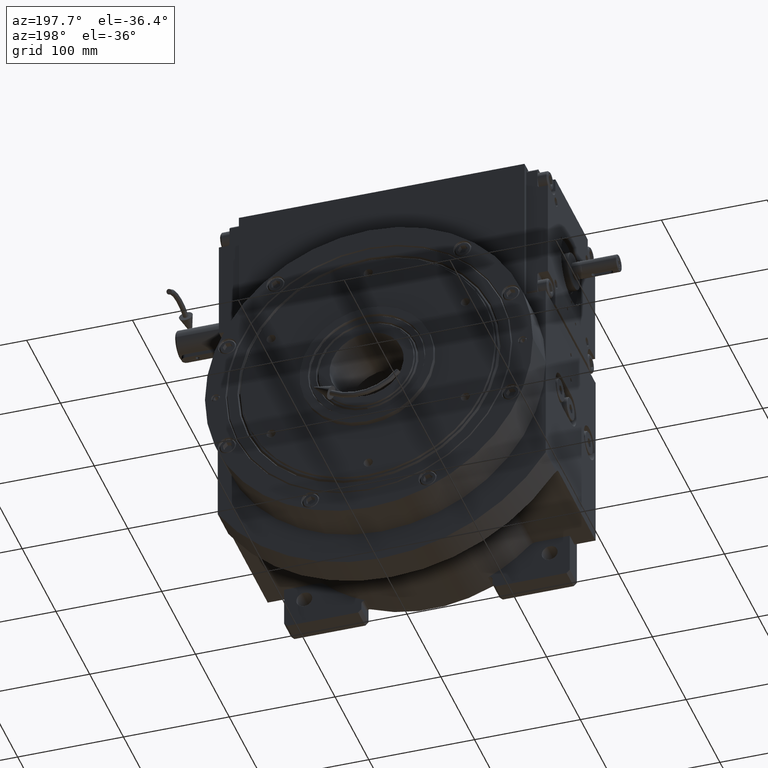
[diagram: clean part render]
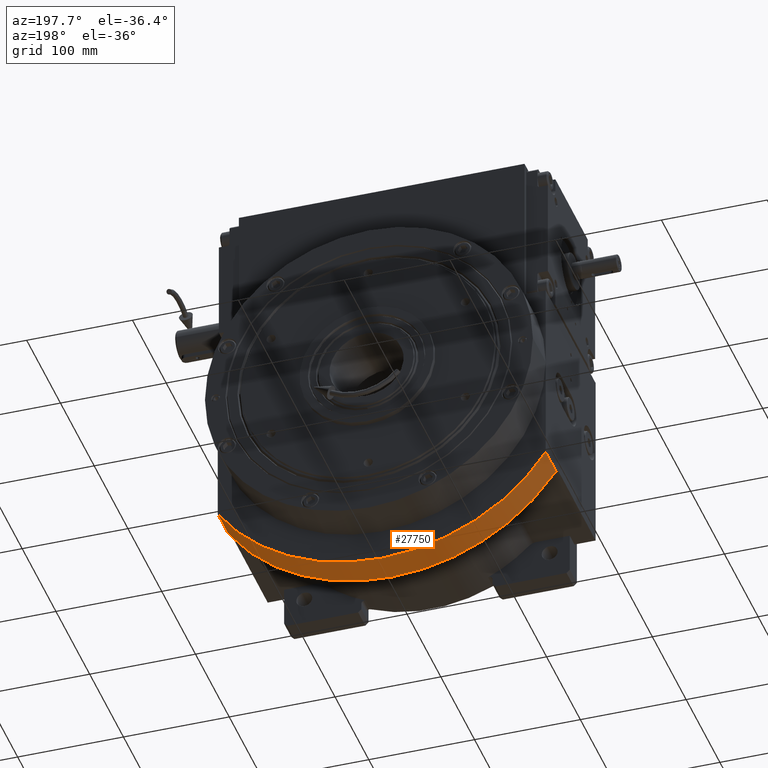
[diagram: same view with one face highlighted and labeled with its STEP entity id]
A machine part, auxiliary view. The second image highlights one B-rep face of the part: STEP entity #27750.
In plain terms, the highlighted cylindrical surface (partial cylindrical patch) has radius 185 mm, axis along (0, -1, 0).
Its self-contained STEP definition (entity closure, byte-faithful):
#423 = AXIS2_PLACEMENT_3D ( 'NONE', #9315, #56445, #25122 ) ;
#2122 = VERTEX_POINT ( 'NONE', #19572 ) ;
#3118 = CARTESIAN_POINT ( 'NONE',  ( -151.6212386178135034, 45.00000000000000000, -106.0000000000000000 ) ) ;
#3895 = CARTESIAN_POINT ( 'NONE',  ( 155.0000000000000000, 75.00000000000000000, -100.9950493836208096 ) ) ;
#6342 = ORIENTED_EDGE ( 'NONE', *, *, #16730, .F. ) ;
#8124 = CARTESIAN_POINT ( 'NONE',  ( -2.057655180072804513E-28, -73.00000000000000000, 0.000000000000000000 ) ) ;
#8748 = CARTESIAN_POINT ( 'NONE',  ( -155.0000000000000000, 43.65739391084900234, -100.9950493836208096 ) ) ;
#9315 = CARTESIAN_POINT ( 'NONE',  ( -1.421085471520200056E-14, 75.00000000000000000, 0.000000000000000000 ) ) ;
#10632 = CARTESIAN_POINT ( 'NONE',  ( 155.0000000000000000, 43.65739391084900234, -100.9950493836208096 ) ) ;
#10992 = CIRCLE ( 'NONE', #40099, 185.0000000000000000 ) ;
#12108 = CARTESIAN_POINT ( 'NONE',  ( -155.0000000000000000, 75.00000000000000000, -100.9950493836208096 ) ) ;
#13684 = CARTESIAN_POINT ( 'NONE',  ( -152.8331263068003523, 45.01258185882932850, -104.2665291276430537 ) ) ;
#13812 = CARTESIAN_POINT ( 'NONE',  ( -155.0000000000000000, 43.65739391084900234, -100.9950493836205965 ) ) ;
#14597 = CARTESIAN_POINT ( 'NONE',  ( 155.0000000000000000, 43.65739391084900234, -100.9950493836208096 ) ) ;
#15303 = DIRECTION ( 'NONE',  ( 0.000000000000000000, 1.000000000000000000, -9.068074731744140484E-16 ) ) ;
#16730 = EDGE_CURVE ( 'NONE', #23568, #46669, #53587, .T. ) ;
#19572 = CARTESIAN_POINT ( 'NONE',  ( 151.6212386178135034, 45.00000000000000000, -106.0000000000000000 ) ) ;
#19980 = CARTESIAN_POINT ( 'NONE',  ( -153.9568177392173709, 44.56504649577900778, -102.5960511298264777 ) ) ;
#20183 = CARTESIAN_POINT ( 'NONE',  ( 152.8331255023750543, 45.01257560629866106, -104.2665302782841650 ) ) ;
#23568 = VERTEX_POINT ( 'NONE', #10632 ) ;
#24136 = ORIENTED_EDGE ( 'NONE', *, *, #34159, .F. ) ;
#25122 = DIRECTION ( 'NONE',  ( 0.8378378378378376068, 0.000000000000000000, -0.5459191858574098388 ) ) ;
#26859 = CARTESIAN_POINT ( 'NONE',  ( 155.0000000000000000, 43.65739391084900234, -100.9950493836205965 ) ) ;
#27750 = ADVANCED_FACE ( 'NONE', ( #67850 ), #51007, .T. ) ;
#28220 = EDGE_CURVE ( 'NONE', #34555, #62479, #67853, .T. ) ;
#28369 = ORIENTED_EDGE ( 'NONE', *, *, #28220, .T. ) ;
#29547 = DIRECTION ( 'NONE',  ( 0.000000000000000000, -1.000000000000000000, 0.000000000000000000 ) ) ;
#29862 = DIRECTION ( 'NONE',  ( 0.000000000000000000, 1.000000000000000000, 0.000000000000000000 ) ) ;
#30175 = VECTOR ( 'NONE', #15303, 1000.000000000000000 ) ;
#32235 = CARTESIAN_POINT ( 'NONE',  ( -155.0000000000000000, 43.65739391084900234, -100.9950493836208096 ) ) ;
#34159 = EDGE_CURVE ( 'NONE', #46669, #39914, #41916, .T. ) ;
#34555 = VERTEX_POINT ( 'NONE', #56718 ) ;
#35985 = CARTESIAN_POINT ( 'NONE',  ( 151.6212386178135034, 45.00000000000000000, -106.0000000000000000 ) ) ;
#39914 = VERTEX_POINT ( 'NONE', #12108 ) ;
#40099 = AXIS2_PLACEMENT_3D ( 'NONE', #55568, #29862, #51314 ) ;
#40154 = EDGE_CURVE ( 'NONE', #62479, #39914, #40828, .T. ) ;
#40788 = DIRECTION ( 'NONE',  ( 1.000000000000000000, 0.000000000000000000, 0.000000000000000000 ) ) ;
#40828 = LINE ( 'NONE', #13812, #65972 ) ;
#41747 = EDGE_CURVE ( 'NONE', #2122, #34555, #10992, .T. ) ;
#41916 = CIRCLE ( 'NONE', #423, 185.0000000000000853 ) ;
#46078 = ORIENTED_EDGE ( 'NONE', *, *, #54033, .T. ) ;
#46669 = VERTEX_POINT ( 'NONE', #3895 ) ;
#48196 = ORIENTED_EDGE ( 'NONE', *, *, #40154, .T. ) ;
#49564 = EDGE_LOOP ( 'NONE', ( #24136, #6342, #46078, #50419, #28369, #48196 ) ) ;
#50419 = ORIENTED_EDGE ( 'NONE', *, *, #41747, .T. ) ;
#51007 = CYLINDRICAL_SURFACE ( 'NONE', #53060, 185.0000000000000000 ) ;
#51314 = DIRECTION ( 'NONE',  ( 0.8195742627989930362, 0.000000000000000000, -0.5729729729729730048 ) ) ;
#52524 = CARTESIAN_POINT ( 'NONE',  ( 153.9568169727738507, 44.56504024324833324, -102.5960523061092573 ) ) ;
#53060 = AXIS2_PLACEMENT_3D ( 'NONE', #8124, #29547, #40788 ) ;
#53587 = LINE ( 'NONE', #26859, #30175 ) ;
#54033 = EDGE_CURVE ( 'NONE', #23568, #2122, #61405, .T. ) ;
#55568 = CARTESIAN_POINT ( 'NONE',  ( 0.000000000000000000, 45.00000000000000000, 0.000000000000000000 ) ) ;
#56445 = DIRECTION ( 'NONE',  ( 0.000000000000000000, 1.000000000000000000, 0.000000000000000000 ) ) ;
#56718 = CARTESIAN_POINT ( 'NONE',  ( -151.6212386178135034, 45.00000000000000000, -106.0000000000000000 ) ) ;
#61405 = B_SPLINE_CURVE_WITH_KNOTS ( 'NONE', 3,
 ( #14597, #52524, #20183, #35985 ),
 .UNSPECIFIED., .F., .F.,
 ( 4, 4 ),
 ( 0.000000000000000000, 1.000000000000000000 ),
 .UNSPECIFIED. ) ;
#62290 = DIRECTION ( 'NONE',  ( 0.000000000000000000, 1.000000000000000000, 0.000000000000000000 ) ) ;
#62479 = VERTEX_POINT ( 'NONE', #32235 ) ;
#65972 = VECTOR ( 'NONE', #62290, 1000.000000000000000 ) ;
#67850 = FACE_OUTER_BOUND ( 'NONE', #49564, .T. ) ;
#67853 = B_SPLINE_CURVE_WITH_KNOTS ( 'NONE', 3,
 ( #3118, #13684, #19980, #8748 ),
 .UNSPECIFIED., .F., .F.,
 ( 4, 4 ),
 ( 0.000000000000000000, 1.000000000000000000 ),
 .UNSPECIFIED. ) ;